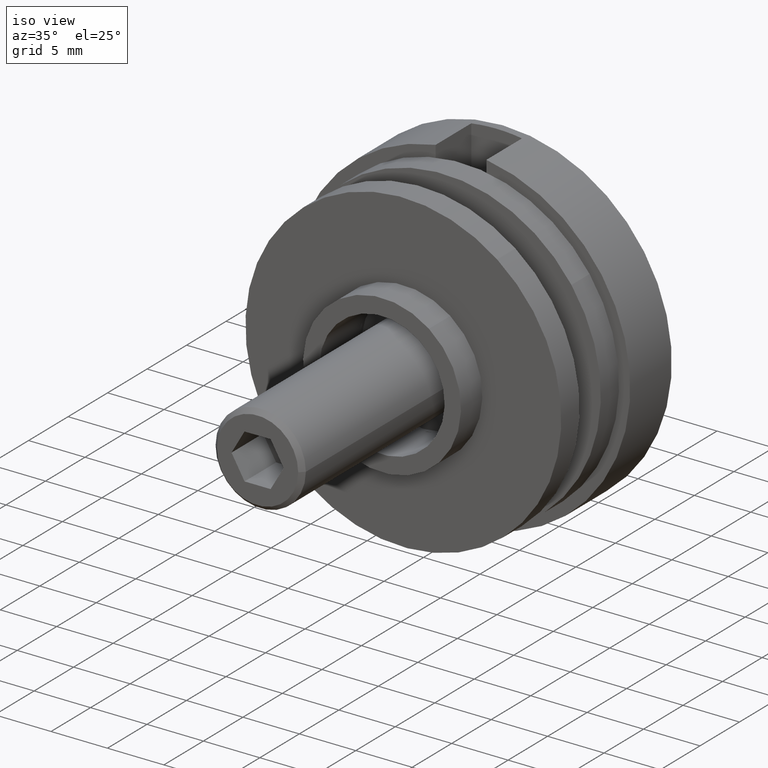
[diagram: clean part render]
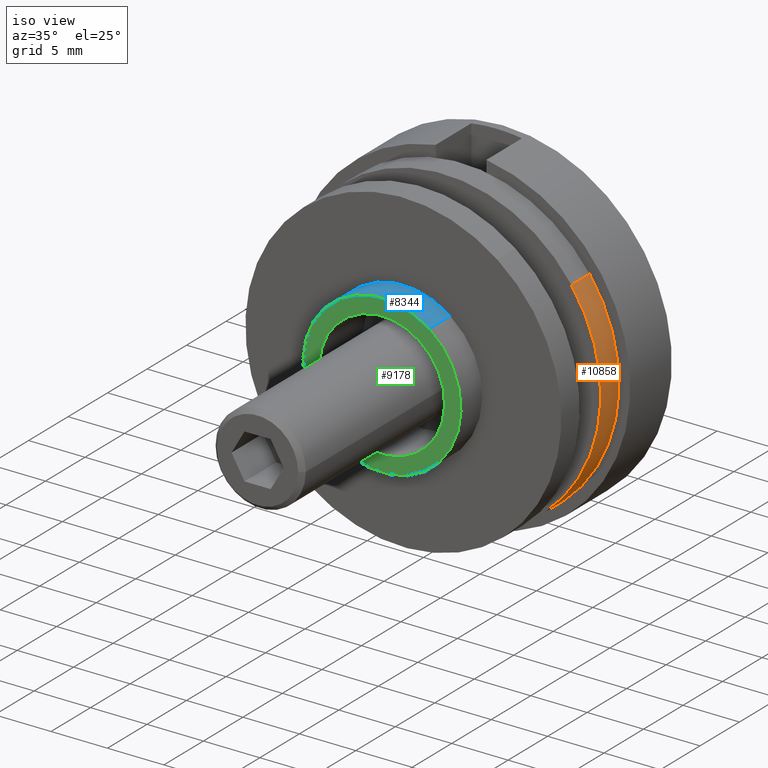
[diagram: same view with three faces highlighted in distinct colors, each labeled with its STEP entity id]
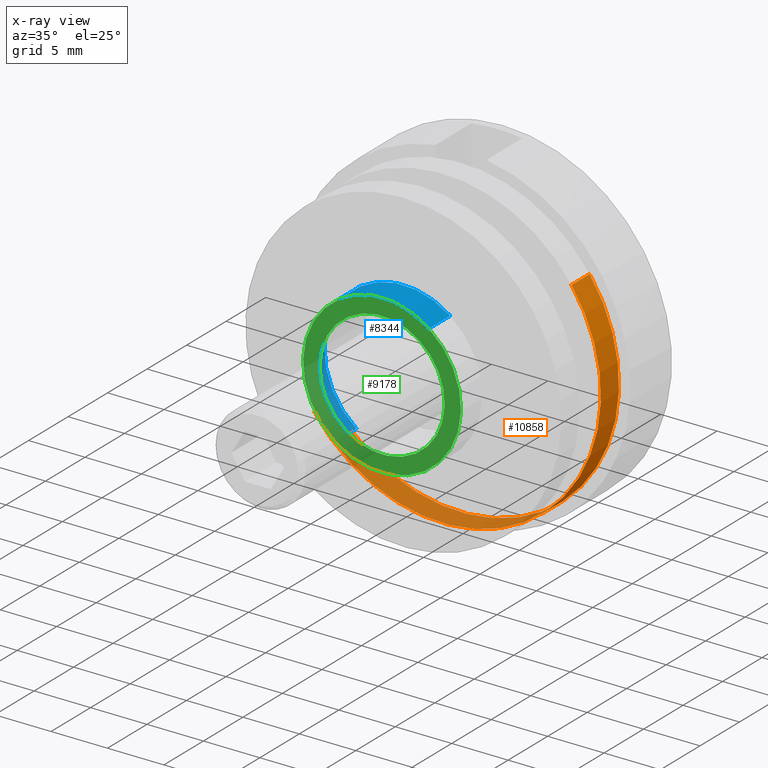
[diagram: x-ray of the same camera — body ghosted, the three highlighted faces saturated]
A machine part, iso view with three faces highlighted in distinct colors.
The next image is the same camera in x-ray (body ghosted, the three faces saturated) — at least one of them is partly hidden behind the body in this view.
Their STEP definitions:

[orange] entity #10858 — the highlighted cylindrical surface (partial cylindrical patch) has radius 14 mm, axis along (0, 1, -0).
#155 = DIRECTION ( 'NONE',  ( -0.0000000000000000000, -1.000000000000000000, -0.0000000000000000000 ) ) ;
#424 = EDGE_LOOP ( 'NONE', ( #3548, #3779, #11230, #1381 ) ) ;
#436 = DIRECTION ( 'NONE',  ( 0.0000000000000000000, 0.0000000000000000000, -1.000000000000000000 ) ) ;
#1139 = CARTESIAN_POINT ( 'NONE',  ( 1.714505518806294600E-015, 2.299999999999999800, 14.00000000000000000 ) ) ;
#1381 = ORIENTED_EDGE ( 'NONE', *, *, #2666, .F. ) ;
#2194 = EDGE_CURVE ( 'NONE', #12366, #5411, #7526, .T. ) ;
#2262 = EDGE_CURVE ( 'NONE', #13215, #9637, #9762, .T. ) ;
#2547 = CYLINDRICAL_SURFACE ( 'NONE', #7542, 14.00000000000000000 ) ;
#2666 = EDGE_CURVE ( 'NONE', #9637, #5411, #9084, .T. ) ;
#3548 = ORIENTED_EDGE ( 'NONE', *, *, #2262, .F. ) ;
#3779 = ORIENTED_EDGE ( 'NONE', *, *, #13566, .T. ) ;
#4079 = CARTESIAN_POINT ( 'NONE',  ( 0.0000000000000000000, 2.299999999999999800, 0.0000000000000000000 ) ) ;
#4167 = CARTESIAN_POINT ( 'NONE',  ( 0.0000000000000000000, 0.0000000000000000000, -14.00000000000000000 ) ) ;
#4500 = CARTESIAN_POINT ( 'NONE',  ( 1.714505518806294600E-015, 0.0000000000000000000, 14.00000000000000000 ) ) ;
#4686 = CARTESIAN_POINT ( 'NONE',  ( 0.0000000000000000000, 0.0000000000000000000, 0.0000000000000000000 ) ) ;
#4893 = CARTESIAN_POINT ( 'NONE',  ( 1.714505518806294600E-015, 0.0000000000000000000, 14.00000000000000000 ) ) ;
#5137 = CARTESIAN_POINT ( 'NONE',  ( 0.0000000000000000000, 0.0000000000000000000, 0.0000000000000000000 ) ) ;
#5236 = DIRECTION ( 'NONE',  ( -0.0000000000000000000, -1.000000000000000000, -0.0000000000000000000 ) ) ;
#5411 = VERTEX_POINT ( 'NONE', #4167 ) ;
#5798 = DIRECTION ( 'NONE',  ( -0.0000000000000000000, -1.000000000000000000, -0.0000000000000000000 ) ) ;
#6867 = VECTOR ( 'NONE', #155, 1000.000000000000000 ) ;
#7526 = LINE ( 'NONE', #8435, #9425 ) ;
#7542 = AXIS2_PLACEMENT_3D ( 'NONE', #5137, #12821, #11675 ) ;
#7999 = FACE_OUTER_BOUND ( 'NONE', #424, .T. ) ;
#8435 = CARTESIAN_POINT ( 'NONE',  ( 0.0000000000000000000, 0.0000000000000000000, -14.00000000000000000 ) ) ;
#8513 = AXIS2_PLACEMENT_3D ( 'NONE', #4686, #5798, #436 ) ;
#9084 = CIRCLE ( 'NONE', #8513, 14.00000000000000000 ) ;
#9354 = CARTESIAN_POINT ( 'NONE',  ( 0.0000000000000000000, 2.299999999999999800, -14.00000000000000000 ) ) ;
#9362 = AXIS2_PLACEMENT_3D ( 'NONE', #4079, #5236, #9646 ) ;
#9425 = VECTOR ( 'NONE', #14135, 1000.000000000000000 ) ;
#9637 = VERTEX_POINT ( 'NONE', #4893 ) ;
#9646 = DIRECTION ( 'NONE',  ( 0.0000000000000000000, 0.0000000000000000000, -1.000000000000000000 ) ) ;
#9762 = LINE ( 'NONE', #4500, #6867 ) ;
#10858 = ADVANCED_FACE ( 'NONE', ( #7999 ), #2547, .T. ) ;
#11230 = ORIENTED_EDGE ( 'NONE', *, *, #2194, .T. ) ;
#11623 = CIRCLE ( 'NONE', #9362, 14.00000000000000000 ) ;
#11675 = DIRECTION ( 'NONE',  ( 0.0000000000000000000, 0.0000000000000000000, -1.000000000000000000 ) ) ;
#12366 = VERTEX_POINT ( 'NONE', #9354 ) ;
#12821 = DIRECTION ( 'NONE',  ( -0.0000000000000000000, -1.000000000000000000, -0.0000000000000000000 ) ) ;
#13215 = VERTEX_POINT ( 'NONE', #1139 ) ;
#13566 = EDGE_CURVE ( 'NONE', #13215, #12366, #11623, .T. ) ;
#14135 = DIRECTION ( 'NONE',  ( -0.0000000000000000000, -1.000000000000000000, -0.0000000000000000000 ) ) ;

[blue] entity #8344 — the highlighted cylindrical surface (partial cylindrical patch) has radius 7 mm, axis along (0, 1, 0).
#520 = DIRECTION ( 'NONE',  ( -0.0000000000000000000, -1.000000000000000000, -0.0000000000000000000 ) ) ;
#1271 = CARTESIAN_POINT ( 'NONE',  ( 0.0000000000000000000, 0.0000000000000000000, -6.999999999999999100 ) ) ;
#1349 = DIRECTION ( 'NONE',  ( 0.0000000000000000000, 0.0000000000000000000, -1.000000000000000000 ) ) ;
#1466 = CARTESIAN_POINT ( 'NONE',  ( 0.0000000000000000000, 0.0000000000000000000, 0.0000000000000000000 ) ) ;
#1654 = ORIENTED_EDGE ( 'NONE', *, *, #13410, .F. ) ;
#2174 = DIRECTION ( 'NONE',  ( -0.0000000000000000000, -1.000000000000000000, -0.0000000000000000000 ) ) ;
#2307 = DIRECTION ( 'NONE',  ( -0.0000000000000000000, -1.000000000000000000, -0.0000000000000000000 ) ) ;
#3752 = DIRECTION ( 'NONE',  ( -0.0000000000000000000, -1.000000000000000000, -0.0000000000000000000 ) ) ;
#3884 = CIRCLE ( 'NONE', #5427, 6.999999999999999100 ) ;
#4710 = CARTESIAN_POINT ( 'NONE',  ( 0.0000000000000000000, 5.000000000000000000, -6.999999999999999100 ) ) ;
#4828 = VERTEX_POINT ( 'NONE', #9870 ) ;
#4849 = CIRCLE ( 'NONE', #12448, 6.999999999999999100 ) ;
#4942 = LINE ( 'NONE', #1271, #8205 ) ;
#5018 = EDGE_CURVE ( 'NONE', #11050, #9473, #4849, .T. ) ;
#5427 = AXIS2_PLACEMENT_3D ( 'NONE', #6899, #7837, #8031 ) ;
#5922 = ORIENTED_EDGE ( 'NONE', *, *, #10622, .F. ) ;
#6161 = CYLINDRICAL_SURFACE ( 'NONE', #6392, 6.999999999999999100 ) ;
#6392 = AXIS2_PLACEMENT_3D ( 'NONE', #1466, #520, #12550 ) ;
#6899 = CARTESIAN_POINT ( 'NONE',  ( 0.0000000000000000000, 2.299999999999998900, 0.0000000000000000000 ) ) ;
#7710 = CARTESIAN_POINT ( 'NONE',  ( 8.572527594031472200E-016, 0.0000000000000000000, 6.999999999999999100 ) ) ;
#7768 = CARTESIAN_POINT ( 'NONE',  ( 8.572527594031472200E-016, 5.000000000000000000, 6.999999999999999100 ) ) ;
#7837 = DIRECTION ( 'NONE',  ( -0.0000000000000000000, -1.000000000000000000, -0.0000000000000000000 ) ) ;
#8031 = DIRECTION ( 'NONE',  ( 0.0000000000000000000, 0.0000000000000000000, -1.000000000000000000 ) ) ;
#8205 = VECTOR ( 'NONE', #2174, 1000.000000000000000 ) ;
#8344 = ADVANCED_FACE ( 'NONE', ( #14044 ), #6161, .T. ) ;
#9390 = VECTOR ( 'NONE', #3752, 1000.000000000000000 ) ;
#9473 = VERTEX_POINT ( 'NONE', #4710 ) ;
#9843 = CARTESIAN_POINT ( 'NONE',  ( 0.0000000000000000000, 5.000000000000000000, 0.0000000000000000000 ) ) ;
#9870 = CARTESIAN_POINT ( 'NONE',  ( 8.572527594031472200E-016, 2.299999999999998900, 6.999999999999999100 ) ) ;
#10311 = ORIENTED_EDGE ( 'NONE', *, *, #12498, .T. ) ;
#10328 = CARTESIAN_POINT ( 'NONE',  ( 0.0000000000000000000, 2.299999999999998900, -6.999999999999999100 ) ) ;
#10427 = LINE ( 'NONE', #7710, #9390 ) ;
#10622 = EDGE_CURVE ( 'NONE', #4828, #13039, #3884, .T. ) ;
#11050 = VERTEX_POINT ( 'NONE', #7768 ) ;
#11324 = ORIENTED_EDGE ( 'NONE', *, *, #5018, .T. ) ;
#12448 = AXIS2_PLACEMENT_3D ( 'NONE', #9843, #2307, #1349 ) ;
#12498 = EDGE_CURVE ( 'NONE', #9473, #13039, #4942, .T. ) ;
#12550 = DIRECTION ( 'NONE',  ( 0.0000000000000000000, 0.0000000000000000000, -1.000000000000000000 ) ) ;
#13039 = VERTEX_POINT ( 'NONE', #10328 ) ;
#13410 = EDGE_CURVE ( 'NONE', #11050, #4828, #10427, .T. ) ;
#13619 = EDGE_LOOP ( 'NONE', ( #1654, #11324, #10311, #5922 ) ) ;
#14044 = FACE_OUTER_BOUND ( 'NONE', #13619, .T. ) ;

[green] entity #9178 — the highlighted planar face has unit normal (0, -1, 0).
#295 = ORIENTED_EDGE ( 'NONE', *, *, #9531, .F. ) ;
#996 = DIRECTION ( 'NONE',  ( 0.0000000000000000000, 0.0000000000000000000, 1.000000000000000000 ) ) ;
#1048 = AXIS2_PLACEMENT_3D ( 'NONE', #3939, #11429, #5974 ) ;
#1349 = DIRECTION ( 'NONE',  ( 0.0000000000000000000, 0.0000000000000000000, -1.000000000000000000 ) ) ;
#1622 = AXIS2_PLACEMENT_3D ( 'NONE', #9559, #5004, #7214 ) ;
#1633 = DIRECTION ( 'NONE',  ( 0.0000000000000000000, 0.0000000000000000000, 1.000000000000000000 ) ) ;
#1877 = CIRCLE ( 'NONE', #1048, 6.999999999999999100 ) ;
#1920 = PLANE ( 'NONE',  #1622 ) ;
#2307 = DIRECTION ( 'NONE',  ( -0.0000000000000000000, -1.000000000000000000, -0.0000000000000000000 ) ) ;
#2569 = CIRCLE ( 'NONE', #5723, 5.549999999999999800 ) ;
#2636 = VERTEX_POINT ( 'NONE', #13771 ) ;
#3939 = CARTESIAN_POINT ( 'NONE',  ( 0.0000000000000000000, 5.000000000000000000, 0.0000000000000000000 ) ) ;
#4029 = EDGE_LOOP ( 'NONE', ( #6230, #10713 ) ) ;
#4710 = CARTESIAN_POINT ( 'NONE',  ( 0.0000000000000000000, 5.000000000000000000, -6.999999999999999100 ) ) ;
#4849 = CIRCLE ( 'NONE', #12448, 6.999999999999999100 ) ;
#4935 = CARTESIAN_POINT ( 'NONE',  ( 0.0000000000000000000, 5.000000000000000000, 0.0000000000000000000 ) ) ;
#5004 = DIRECTION ( 'NONE',  ( 0.0000000000000000000, 1.000000000000000000, 0.0000000000000000000 ) ) ;
#5018 = EDGE_CURVE ( 'NONE', #11050, #9473, #4849, .T. ) ;
#5723 = AXIS2_PLACEMENT_3D ( 'NONE', #13090, #6538, #996 ) ;
#5974 = DIRECTION ( 'NONE',  ( 0.0000000000000000000, 0.0000000000000000000, -1.000000000000000000 ) ) ;
#6152 = DIRECTION ( 'NONE',  ( 0.0000000000000000000, 1.000000000000000000, 0.0000000000000000000 ) ) ;
#6230 = ORIENTED_EDGE ( 'NONE', *, *, #11189, .F. ) ;
#6538 = DIRECTION ( 'NONE',  ( 0.0000000000000000000, 1.000000000000000000, 0.0000000000000000000 ) ) ;
#6788 = ORIENTED_EDGE ( 'NONE', *, *, #5018, .F. ) ;
#7063 = CIRCLE ( 'NONE', #12056, 5.549999999999999800 ) ;
#7214 = DIRECTION ( 'NONE',  ( 0.0000000000000000000, -0.0000000000000000000, 1.000000000000000000 ) ) ;
#7768 = CARTESIAN_POINT ( 'NONE',  ( 8.572527594031472200E-016, 5.000000000000000000, 6.999999999999999100 ) ) ;
#8876 = FACE_OUTER_BOUND ( 'NONE', #9872, .T. ) ;
#8902 = CARTESIAN_POINT ( 'NONE',  ( 0.0000000000000000000, 5.000000000000000000, 5.549999999999999800 ) ) ;
#9178 = ADVANCED_FACE ( 'NONE', ( #12838, #8876 ), #1920, .T. ) ;
#9284 = EDGE_CURVE ( 'NONE', #2636, #11548, #2569, .T. ) ;
#9473 = VERTEX_POINT ( 'NONE', #4710 ) ;
#9531 = EDGE_CURVE ( 'NONE', #9473, #11050, #1877, .T. ) ;
#9559 = CARTESIAN_POINT ( 'NONE',  ( 0.0000000000000000000, 5.000000000000000000, 0.0000000000000000000 ) ) ;
#9843 = CARTESIAN_POINT ( 'NONE',  ( 0.0000000000000000000, 5.000000000000000000, 0.0000000000000000000 ) ) ;
#9872 = EDGE_LOOP ( 'NONE', ( #295, #6788 ) ) ;
#10713 = ORIENTED_EDGE ( 'NONE', *, *, #9284, .F. ) ;
#11050 = VERTEX_POINT ( 'NONE', #7768 ) ;
#11189 = EDGE_CURVE ( 'NONE', #11548, #2636, #7063, .T. ) ;
#11429 = DIRECTION ( 'NONE',  ( -0.0000000000000000000, -1.000000000000000000, -0.0000000000000000000 ) ) ;
#11548 = VERTEX_POINT ( 'NONE', #8902 ) ;
#12056 = AXIS2_PLACEMENT_3D ( 'NONE', #4935, #6152, #1633 ) ;
#12448 = AXIS2_PLACEMENT_3D ( 'NONE', #9843, #2307, #1349 ) ;
#12838 = FACE_BOUND ( 'NONE', #4029, .T. ) ;
#13090 = CARTESIAN_POINT ( 'NONE',  ( 0.0000000000000000000, 5.000000000000000000, 0.0000000000000000000 ) ) ;
#13771 = CARTESIAN_POINT ( 'NONE',  ( 6.796789735267810800E-016, 5.000000000000000000, -5.549999999999999800 ) ) ;